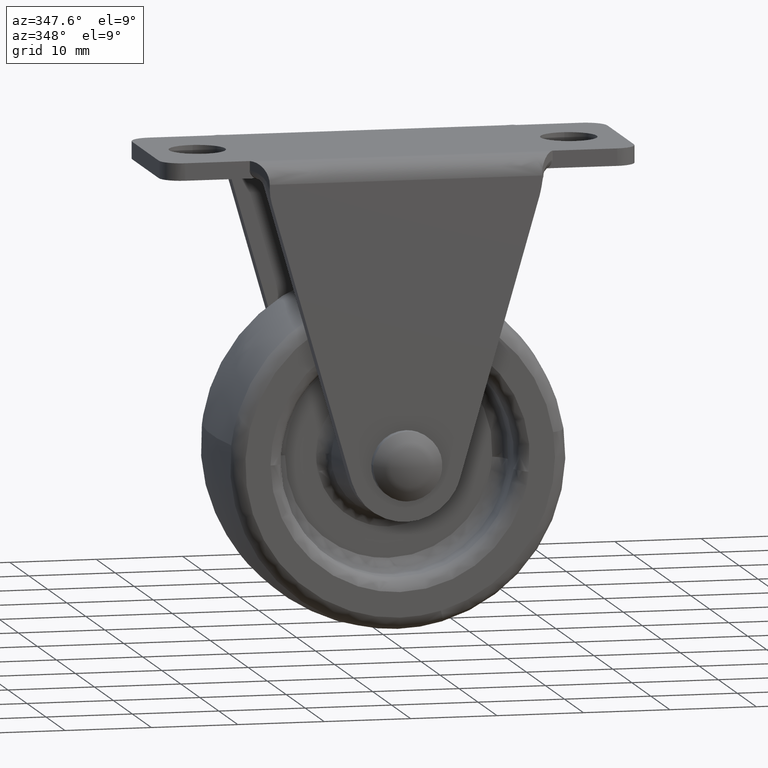
[diagram: clean part render]
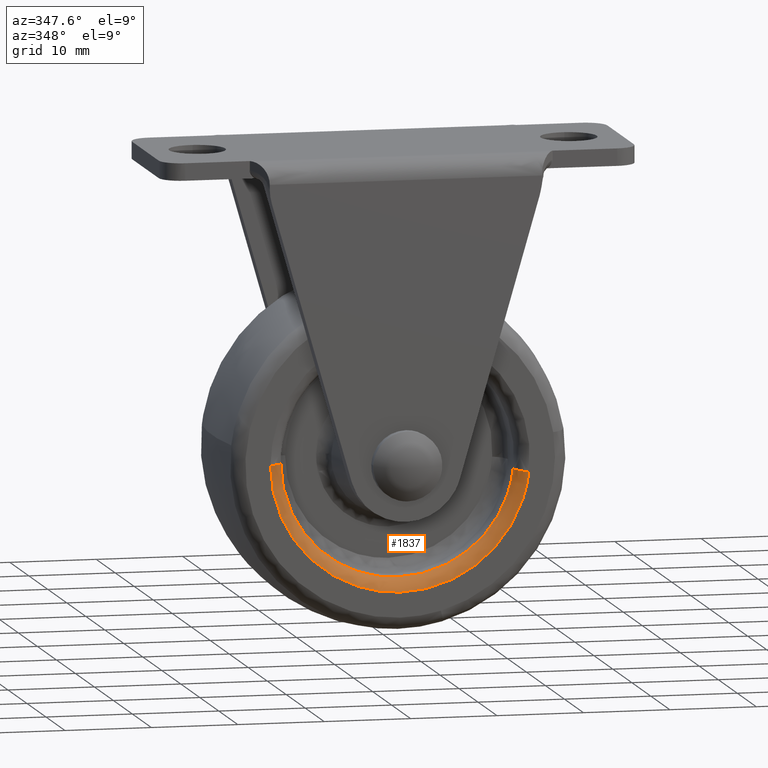
[diagram: same view with one face highlighted and labeled with its STEP entity id]
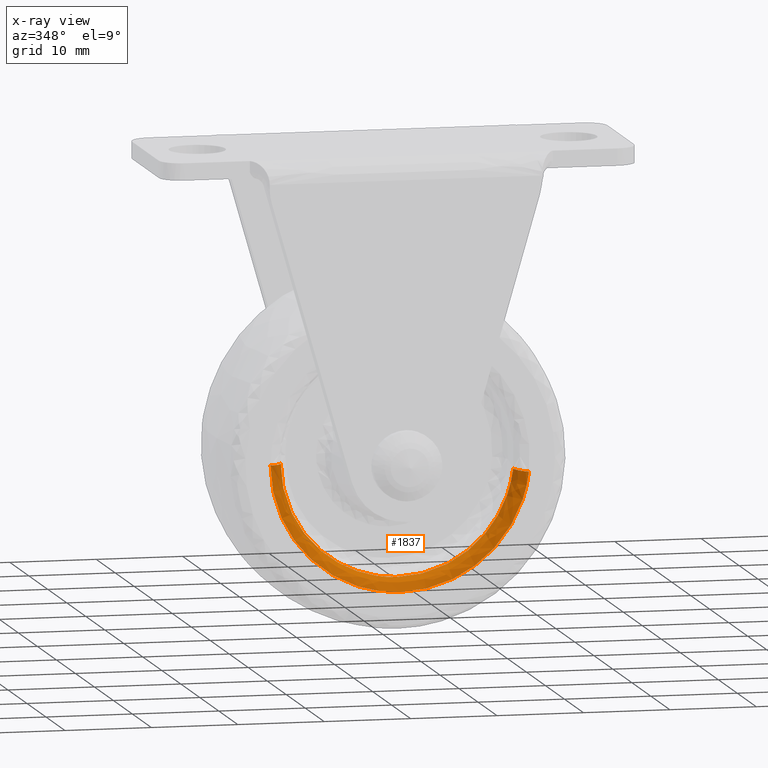
[diagram: x-ray of the same camera — body ghosted, the highlighted face saturated]
A machine part, auxiliary view. The second image highlights one B-rep face of the part: STEP entity #1837.
The next image is the same camera in x-ray: the body ghosted, the highlighted face saturated — about 0% of this face is hidden behind the body in this view.
In plain terms, the highlighted face is a freeform B-spline surface patch.
Its self-contained STEP definition (entity closure, byte-faithful):
#355=CARTESIAN_POINT('',(-13.500000000000000,-7.500000000311166,-35.0));
#356=VERTEX_POINT('',#355);
#370=CARTESIAN_POINT('',(0.0,-7.500000000000100,-48.500000000000000));
#371=VERTEX_POINT('',#370);
#372=CARTESIAN_POINT('',(-13.500000000000000,-7.500000000311166,-35.0));
#373=CARTESIAN_POINT('',(-13.500000000000000,-7.500000000000099,-48.500000000000007));
#374=CARTESIAN_POINT('',(0.0,-7.500000000000100,-48.500000000000000));
#382=(BOUNDED_CURVE()B_SPLINE_CURVE(2,(#372,#373,#374),.UNSPECIFIED.,.F.,.U.)B_SPLINE_CURVE_WITH_KNOTS((3,3),(0.750000000000000,1.0),.UNSPECIFIED.)CURVE()GEOMETRIC_REPRESENTATION_ITEM()RATIONAL_B_SPLINE_CURVE((1.0,0.707106781186548,1.0))REPRESENTATION_ITEM(''));
#383=EDGE_CURVE('',#356,#371,#382,.T.);
#385=CARTESIAN_POINT('',(13.409707123598521,-7.500000000311097,-36.558767095916203));
#386=VERTEX_POINT('',#385);
#387=CARTESIAN_POINT('',(0.0,-7.500000000000100,-48.500000000000000));
#388=CARTESIAN_POINT('',(12.021637961162483,-7.500000000000098,-48.499999999999993));
#389=CARTESIAN_POINT('',(13.409707123598517,-7.500000000311097,-36.558767095916188));
#397=(BOUNDED_CURVE()B_SPLINE_CURVE(2,(#387,#388,#389),.UNSPECIFIED.,.F.,.U.)B_SPLINE_CURVE_WITH_KNOTS((3,3),(0.0,0.229999999999982),.UNSPECIFIED.)CURVE()GEOMETRIC_REPRESENTATION_ITEM()RATIONAL_B_SPLINE_CURVE((1.0,0.730538238691644,0.956886118190625))REPRESENTATION_ITEM(''));
#398=EDGE_CURVE('',#371,#386,#397,.T.);
#1716=CARTESIAN_POINT('',(14.899674526005940,-9.000000000000098,-36.731963433016830));
#1717=VERTEX_POINT('',#1716);
#1718=CARTESIAN_POINT('',(14.899674526005937,-9.000000000000098,-36.731963433016830));
#1719=CARTESIAN_POINT('',(13.409707124216432,-8.999999887614619,-36.558767095987321));
#1720=CARTESIAN_POINT('',(13.409707123598517,-7.500000000311098,-36.558767095916195));
#1728=(BOUNDED_CURVE()B_SPLINE_CURVE(2,(#1718,#1719,#1720),.UNSPECIFIED.,.F.,.U.)B_SPLINE_CURVE_WITH_KNOTS((3,3),(-1.726807222981858,-0.285995334466382),.UNSPECIFIED.)CURVE()GEOMETRIC_REPRESENTATION_ITEM()RATIONAL_B_SPLINE_CURVE((0.844728298809634,0.595760599774807,0.840342784784922))REPRESENTATION_ITEM(''));
#1729=EDGE_CURVE('',#1717,#386,#1728,.T.);
#1748=CARTESIAN_POINT('',(-14.999999943797709,-9.000000000000098,-35.0));
#1749=VERTEX_POINT('',#1748);
#1763=CARTESIAN_POINT('',(-14.999999943797700,-9.000000000000098,-34.999999999999993));
#1764=CARTESIAN_POINT('',(-13.500000000622132,-8.999999887595521,-35.000000000000007));
#1765=CARTESIAN_POINT('',(-13.499999999999995,-7.500000000311167,-35.0));
#1773=(BOUNDED_CURVE()B_SPLINE_CURVE(2,(#1763,#1764,#1765),.UNSPECIFIED.,.F.,.U.)B_SPLINE_CURVE_WITH_KNOTS((3,3),(-1.726807222968851,-0.285995334466477),.UNSPECIFIED.)CURVE()GEOMETRIC_REPRESENTATION_ITEM()RATIONAL_B_SPLINE_CURVE((0.882788748573764,0.622603451394543,0.878205638904933))REPRESENTATION_ITEM(''));
#1774=EDGE_CURVE('',#1749,#356,#1773,.T.);
#1780=CARTESIAN_POINT('',(-15.104027370578054,-8.996388420889081,-35.000000000000007));
#1781=CARTESIAN_POINT('',(-15.104027370578050,-8.996388420889080,-50.104027370578045));
#1782=CARTESIAN_POINT('',(-1.849649E-015,-8.996388420889081,-50.104027370578045));
#1783=CARTESIAN_POINT('',(13.450011022562757,-8.996388420889080,-50.104027370578052));
#1784=CARTESIAN_POINT('',(15.003006179723615,-8.996388420889080,-36.743974880078824));
#1785=CARTESIAN_POINT('',(-13.383390871203746,-9.116005285235172,-34.999999999999993));
#1786=CARTESIAN_POINT('',(-13.383390871203742,-9.116005285235172,-48.383390871203744));
#1787=CARTESIAN_POINT('',(-1.638939E-015,-9.116005285235172,-48.383390871203737));
#1788=CARTESIAN_POINT('',(11.917798499730008,-9.116005285235172,-48.383390871203737));
#1789=CARTESIAN_POINT('',(13.293877918776698,-9.116005285235175,-36.545302912726534));
#1790=CARTESIAN_POINT('',(-13.503650547595823,-7.395413594144828,-35.000000000000007));
#1791=CARTESIAN_POINT('',(-13.503650547595822,-7.395413594144828,-48.503650547595825));
#1792=CARTESIAN_POINT('',(-1.653666E-015,-7.395413594144828,-48.503650547595811));
#1793=CARTESIAN_POINT('',(12.024888743501284,-7.395413594144828,-48.503650547595832));
#1794=CARTESIAN_POINT('',(13.413333255013477,-7.395413594144829,-36.559188603580260));
#1802=(BOUNDED_SURFACE()B_SPLINE_SURFACE(2,2,((#1780,#1785,#1790),(#1781,#1786,#1791),(#1782,#1787,#1792),(#1783,#1788,#1793),(#1784,#1789,#1794)),.UNSPECIFIED.,.F.,.F.,.U.)B_SPLINE_SURFACE_WITH_KNOTS((3,2,3),(3,3),(0.0,25.025171933391469,48.048330112111621),(0.0,2.733557470195419),.UNSPECIFIED.)GEOMETRIC_REPRESENTATION_ITEM()RATIONAL_B_SPLINE_SURFACE(((0.910068603666740,0.595552741890964,0.905027209731593),(0.643515680997725,0.421119382345342,0.639950877159549),(0.910068603666740,0.595552741890964,0.905027209731593),(0.664839914811246,0.435074051108992,0.661156983765313),(0.870832013449861,0.569876151365848,0.866007973576988)))REPRESENTATION_ITEM('')SURFACE());
#1803=ORIENTED_EDGE('',*,*,#398,.F.);
#1804=ORIENTED_EDGE('',*,*,#383,.F.);
#1805=ORIENTED_EDGE('',*,*,#1774,.F.);
#1806=CARTESIAN_POINT('',(0.0,-9.000000000000100,-50.0));
#1807=VERTEX_POINT('',#1806);
#1808=CARTESIAN_POINT('',(-14.999999943797709,-9.000000000000098,-35.0));
#1809=CARTESIAN_POINT('',(-14.999999999999996,-9.000000000000100,-49.999999999999993));
#1810=CARTESIAN_POINT('',(0.0,-9.000000000000100,-50.0));
#1818=(BOUNDED_CURVE()B_SPLINE_CURVE(2,(#1808,#1809,#1810),.UNSPECIFIED.,.F.,.U.)B_SPLINE_CURVE_WITH_KNOTS((3,3),(0.750000000000000,1.0),.UNSPECIFIED.)CURVE()GEOMETRIC_REPRESENTATION_ITEM()RATIONAL_B_SPLINE_CURVE((1.0,0.707106781186547,1.0))REPRESENTATION_ITEM(''));
#1819=EDGE_CURVE('',#1749,#1807,#1818,.T.);
#1820=ORIENTED_EDGE('',*,*,#1819,.T.);
#1821=CARTESIAN_POINT('',(0.0,-9.000000000000100,-50.0));
#1822=CARTESIAN_POINT('',(13.357375513128030,-9.000000000000100,-49.999999999999993));
#1823=CARTESIAN_POINT('',(14.899674526005942,-9.000000000000098,-36.731963433016830));
#1831=(BOUNDED_CURVE()B_SPLINE_CURVE(2,(#1821,#1822,#1823),.UNSPECIFIED.,.F.,.U.)B_SPLINE_CURVE_WITH_KNOTS((3,3),(0.0,0.230000000009106),.UNSPECIFIED.)CURVE()GEOMETRIC_REPRESENTATION_ITEM()RATIONAL_B_SPLINE_CURVE((1.0,0.730538238680956,0.956886118208582))REPRESENTATION_ITEM(''));
#1832=EDGE_CURVE('',#1807,#1717,#1831,.T.);
#1833=ORIENTED_EDGE('',*,*,#1832,.T.);
#1834=ORIENTED_EDGE('',*,*,#1729,.T.);
#1835=EDGE_LOOP('',(#1803,#1804,#1805,#1820,#1833,#1834));
#1836=FACE_OUTER_BOUND('',#1835,.T.);
#1837=ADVANCED_FACE('',(#1836),#1802,.T.);